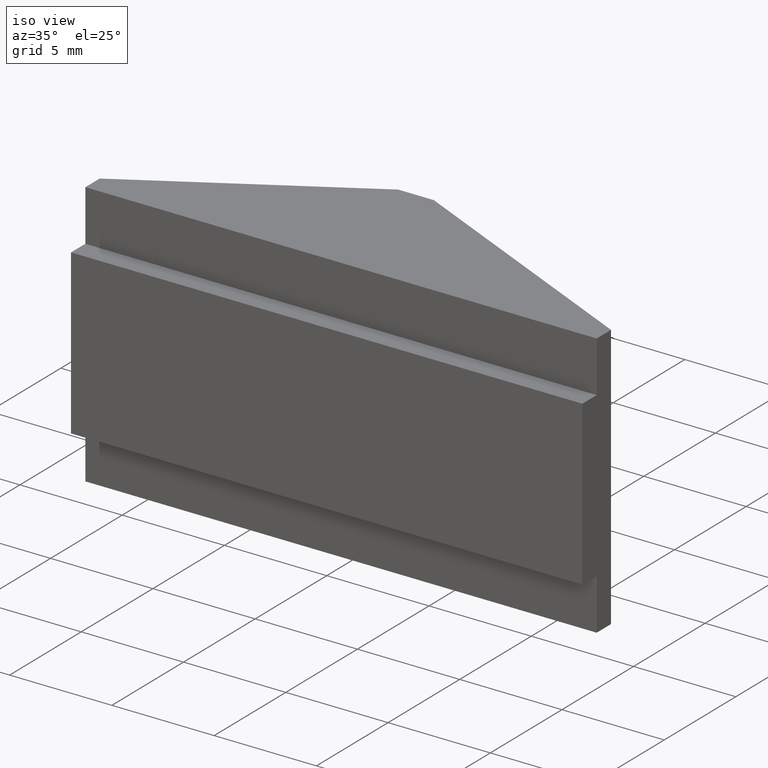
[diagram: clean part render]
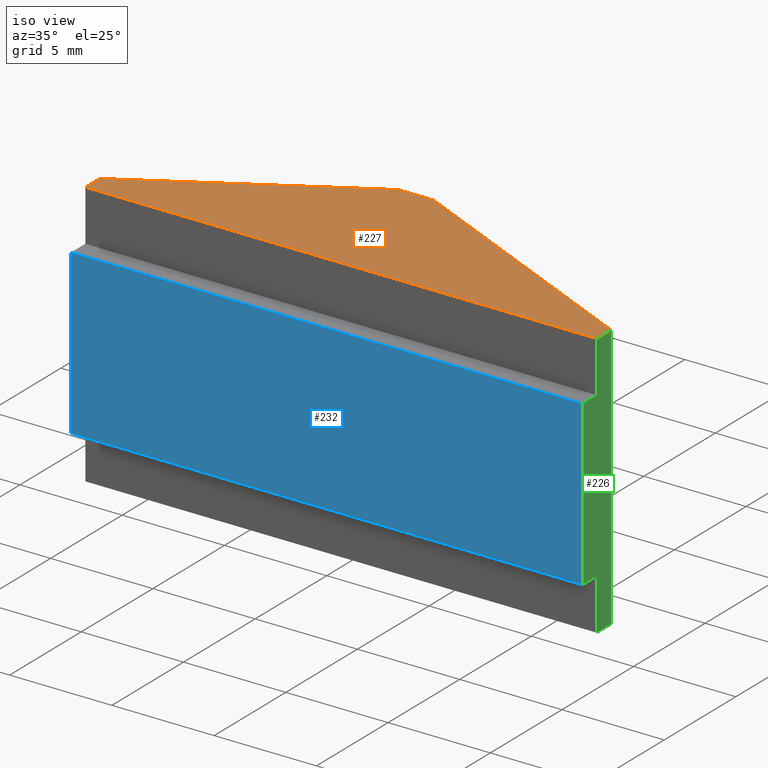
[diagram: same view with three faces highlighted in distinct colors, each labeled with its STEP entity id]
A machine part, iso view with three faces highlighted in distinct colors.
Their STEP definitions:

[orange] entity #227 — the highlighted planar face has unit normal (0, 0, 1).
#21=FACE_OUTER_BOUND('',#33,.T.);
#33=EDGE_LOOP('',(#181,#182,#183,#184,#185,#186));
#52=LINE('',#354,#82);
#54=LINE('',#358,#84);
#59=LINE('',#367,#89);
#61=LINE('',#371,#91);
#62=LINE('',#373,#92);
#63=LINE('',#374,#93);
#82=VECTOR('',#291,10.);
#84=VECTOR('',#295,10.);
#89=VECTOR('',#302,10.);
#91=VECTOR('',#306,10.);
#92=VECTOR('',#307,10.);
#93=VECTOR('',#308,10.);
#109=VERTEX_POINT('',#350);
#110=VERTEX_POINT('',#352);
#111=VERTEX_POINT('',#357);
#114=VERTEX_POINT('',#365);
#115=VERTEX_POINT('',#370);
#116=VERTEX_POINT('',#372);
#132=EDGE_CURVE('',#109,#110,#52,.T.);
#134=EDGE_CURVE('',#111,#109,#54,.T.);
#139=EDGE_CURVE('',#110,#114,#59,.T.);
#141=EDGE_CURVE('',#114,#115,#61,.T.);
#142=EDGE_CURVE('',#115,#116,#62,.T.);
#143=EDGE_CURVE('',#116,#111,#63,.T.);
#181=ORIENTED_EDGE('',*,*,#132,.T.);
#182=ORIENTED_EDGE('',*,*,#139,.T.);
#183=ORIENTED_EDGE('',*,*,#141,.T.);
#184=ORIENTED_EDGE('',*,*,#142,.T.);
#185=ORIENTED_EDGE('',*,*,#143,.T.);
#186=ORIENTED_EDGE('',*,*,#134,.T.);
#215=PLANE('',#262);
#227=ADVANCED_FACE('',(#21),#215,.T.);
#262=AXIS2_PLACEMENT_3D('',#369,#304,#305);
#291=DIRECTION('',(1.,0.,0.));
#295=DIRECTION('',(0.,-1.,0.));
#302=DIRECTION('',(0.,1.,0.));
#304=DIRECTION('center_axis',(0.,0.,1.));
#305=DIRECTION('ref_axis',(1.,0.,0.));
#306=DIRECTION('',(-0.90630778703665,0.422618261740699,0.));
#307=DIRECTION('',(-1.,0.,0.));
#308=DIRECTION('',(-0.866025403784438,-0.5,0.));
#350=CARTESIAN_POINT('',(-12.5,1.,6.5));
#352=CARTESIAN_POINT('',(12.5,1.,6.5));
#354=CARTESIAN_POINT('',(0.,1.,6.5));
#357=CARTESIAN_POINT('',(-12.5,2.,6.5));
#358=CARTESIAN_POINT('',(-12.5,2.,6.5));
#365=CARTESIAN_POINT('',(12.5,2.,6.5));
#367=CARTESIAN_POINT('',(12.5,1.11022302462516E-15,6.5));
#369=CARTESIAN_POINT('Origin',(0.,4.,6.5));
#370=CARTESIAN_POINT('',(-0.367041523057356,8.,6.5));
#371=CARTESIAN_POINT('',(12.5,2.,6.5));
#372=CARTESIAN_POINT('',(-2.10769515458674,8.,6.5));
#373=CARTESIAN_POINT('',(-0.367041523057356,8.,6.5));
#374=CARTESIAN_POINT('',(-2.10769515458674,8.,6.5));

[blue] entity #232 — the highlighted planar face has unit normal (0, -1, 0).
#26=FACE_OUTER_BOUND('',#38,.T.);
#38=EDGE_LOOP('',(#205,#206,#207,#208));
#44=LINE('',#338,#74);
#47=LINE('',#345,#77);
#53=LINE('',#356,#83);
#60=LINE('',#368,#90);
#74=VECTOR('',#279,10.);
#77=VECTOR('',#284,10.);
#83=VECTOR('',#294,10.);
#90=VECTOR('',#303,10.);
#103=VERTEX_POINT('',#335);
#104=VERTEX_POINT('',#337);
#105=VERTEX_POINT('',#341);
#107=VERTEX_POINT('',#344);
#124=EDGE_CURVE('',#104,#103,#44,.T.);
#127=EDGE_CURVE('',#107,#105,#47,.T.);
#133=EDGE_CURVE('',#105,#104,#53,.T.);
#140=EDGE_CURVE('',#103,#107,#60,.T.);
#205=ORIENTED_EDGE('',*,*,#124,.T.);
#206=ORIENTED_EDGE('',*,*,#140,.T.);
#207=ORIENTED_EDGE('',*,*,#127,.T.);
#208=ORIENTED_EDGE('',*,*,#133,.T.);
#220=PLANE('',#267);
#232=ADVANCED_FACE('',(#26),#220,.T.);
#267=AXIS2_PLACEMENT_3D('',#386,#322,#323);
#279=DIRECTION('',(1.,0.,0.));
#284=DIRECTION('',(-1.,0.,0.));
#294=DIRECTION('',(0.,0.,-1.));
#303=DIRECTION('',(0.,0.,1.));
#322=DIRECTION('center_axis',(0.,-1.,0.));
#323=DIRECTION('ref_axis',(1.,0.,0.));
#335=CARTESIAN_POINT('',(12.5,1.22464679914736E-16,-4.));
#337=CARTESIAN_POINT('',(-12.5,1.22464679914736E-16,-4.));
#338=CARTESIAN_POINT('',(-6.25,1.11022302462516E-15,-4.));
#341=CARTESIAN_POINT('',(-12.5,1.22464679914736E-16,4.));
#344=CARTESIAN_POINT('',(12.5,1.22464679914736E-16,4.));
#345=CARTESIAN_POINT('',(-6.25,1.11022302462516E-15,4.));
#356=CARTESIAN_POINT('',(-12.5,1.11022302462516E-15,0.));
#368=CARTESIAN_POINT('',(12.5,1.11022302462516E-15,0.));
#386=CARTESIAN_POINT('Origin',(-12.5,1.11022302462516E-15,0.));

[green] entity #226 — the highlighted planar face has unit normal (1, 0, 0).
#20=FACE_OUTER_BOUND('',#32,.T.);
#32=EDGE_LOOP('',(#173,#174,#175,#176,#177,#178,#179,#180));
#39=LINE('',#328,#69);
#43=LINE('',#336,#73);
#48=LINE('',#347,#78);
#51=LINE('',#353,#81);
#57=LINE('',#364,#87);
#58=LINE('',#366,#88);
#59=LINE('',#367,#89);
#60=LINE('',#368,#90);
#69=VECTOR('',#272,10.);
#73=VECTOR('',#278,10.);
#78=VECTOR('',#285,10.);
#81=VECTOR('',#290,10.);
#87=VECTOR('',#300,10.);
#88=VECTOR('',#301,10.);
#89=VECTOR('',#302,10.);
#90=VECTOR('',#303,10.);
#99=VERTEX_POINT('',#326);
#100=VERTEX_POINT('',#327);
#103=VERTEX_POINT('',#335);
#107=VERTEX_POINT('',#344);
#108=VERTEX_POINT('',#346);
#110=VERTEX_POINT('',#352);
#113=VERTEX_POINT('',#363);
#114=VERTEX_POINT('',#365);
#119=EDGE_CURVE('',#99,#100,#39,.T.);
#123=EDGE_CURVE('',#103,#99,#43,.T.);
#128=EDGE_CURVE('',#108,#107,#48,.T.);
#131=EDGE_CURVE('',#110,#108,#51,.T.);
#137=EDGE_CURVE('',#113,#100,#57,.T.);
#138=EDGE_CURVE('',#113,#114,#58,.T.);
#139=EDGE_CURVE('',#110,#114,#59,.T.);
#140=EDGE_CURVE('',#103,#107,#60,.T.);
#173=ORIENTED_EDGE('',*,*,#123,.T.);
#174=ORIENTED_EDGE('',*,*,#119,.T.);
#175=ORIENTED_EDGE('',*,*,#137,.F.);
#176=ORIENTED_EDGE('',*,*,#138,.T.);
#177=ORIENTED_EDGE('',*,*,#139,.F.);
#178=ORIENTED_EDGE('',*,*,#131,.T.);
#179=ORIENTED_EDGE('',*,*,#128,.T.);
#180=ORIENTED_EDGE('',*,*,#140,.F.);
#214=PLANE('',#261);
#226=ADVANCED_FACE('',(#20),#214,.T.);
#261=AXIS2_PLACEMENT_3D('',#362,#298,#299);
#272=DIRECTION('',(0.,1.66533453693773E-16,-1.));
#278=DIRECTION('',(0.,1.,0.));
#285=DIRECTION('',(0.,-1.,0.));
#290=DIRECTION('',(0.,-1.66533453693773E-16,-1.));
#298=DIRECTION('center_axis',(1.,0.,0.));
#299=DIRECTION('ref_axis',(0.,1.,0.));
#300=DIRECTION('',(0.,-1.,0.));
#301=DIRECTION('',(0.,0.,1.));
#302=DIRECTION('',(0.,1.,0.));
#303=DIRECTION('',(0.,0.,1.));
#326=CARTESIAN_POINT('',(12.5,1.,-4.));
#327=CARTESIAN_POINT('',(12.5,1.,-6.5));
#328=CARTESIAN_POINT('',(12.5,1.,-2.));
#335=CARTESIAN_POINT('',(12.5,1.22464679914736E-16,-4.));
#336=CARTESIAN_POINT('',(12.5,6.24500451351651E-16,-4.));
#344=CARTESIAN_POINT('',(12.5,1.22464679914736E-16,4.));
#346=CARTESIAN_POINT('',(12.5,1.,4.));
#347=CARTESIAN_POINT('',(12.5,0.500000000000001,4.));
#352=CARTESIAN_POINT('',(12.5,1.,6.5));
#353=CARTESIAN_POINT('',(12.5,1.,3.25));
#362=CARTESIAN_POINT('Origin',(12.5,1.11022302462516E-15,0.));
#363=CARTESIAN_POINT('',(12.5,2.,-6.5));
#364=CARTESIAN_POINT('',(12.5,1.11022302462516E-15,-6.5));
#365=CARTESIAN_POINT('',(12.5,2.,6.5));
#366=CARTESIAN_POINT('',(12.5,2.,0.));
#367=CARTESIAN_POINT('',(12.5,1.11022302462516E-15,6.5));
#368=CARTESIAN_POINT('',(12.5,1.11022302462516E-15,0.));